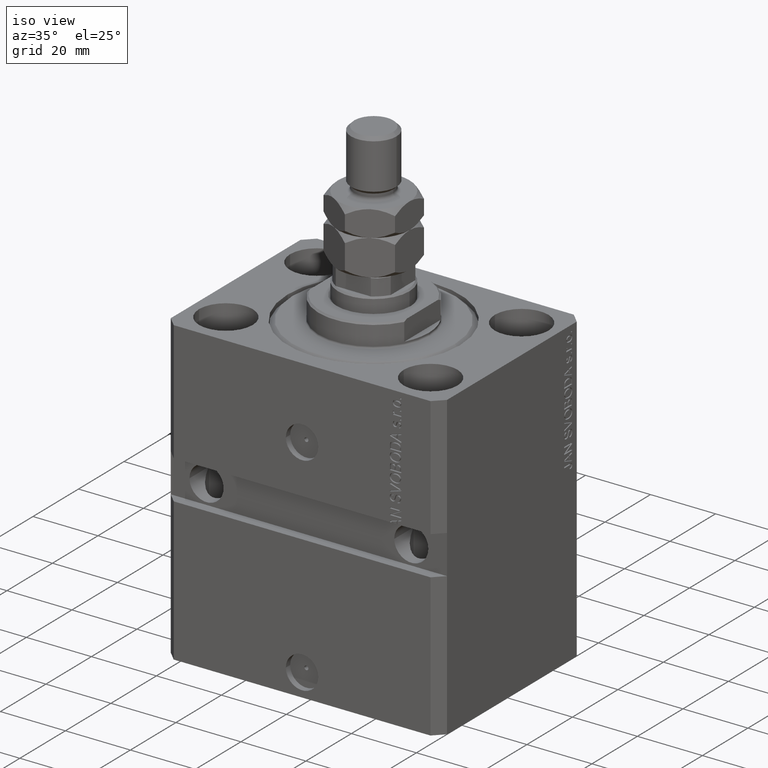
[diagram: clean part render]
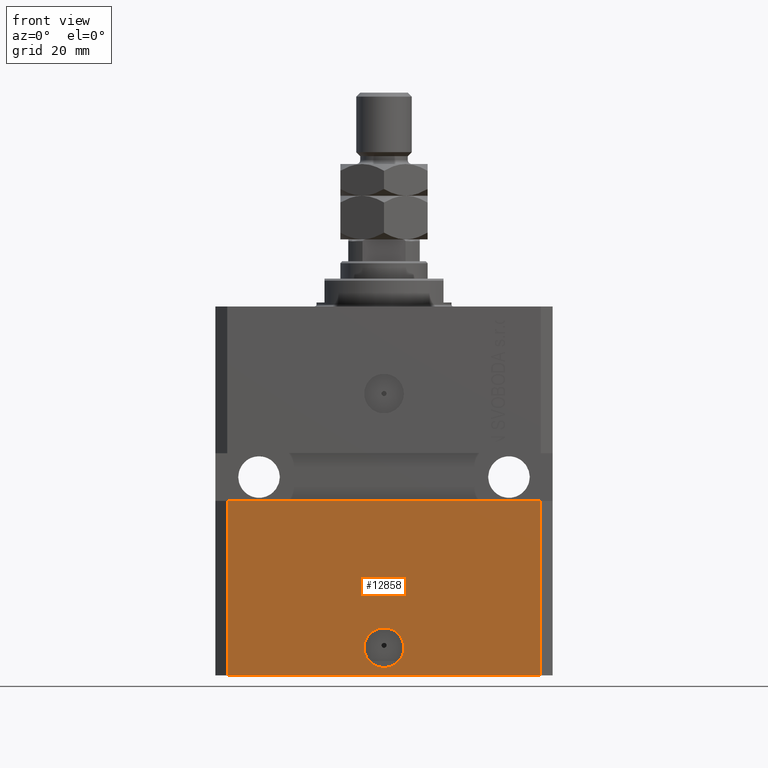
[diagram: tour spotlight — one face highlighted and labeled with its STEP entity id]
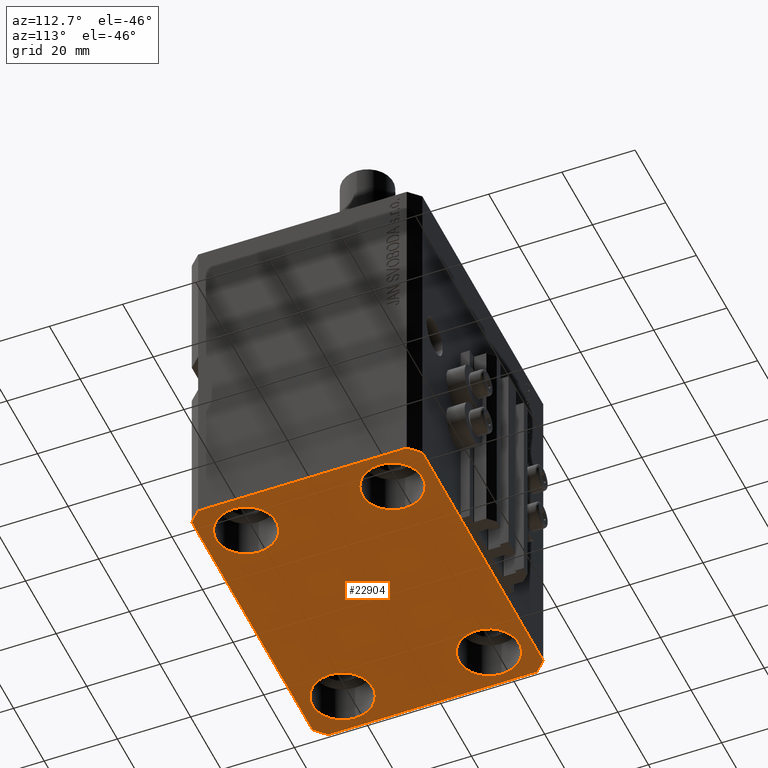
[diagram: tour spotlight — one face highlighted and labeled with its STEP entity id]
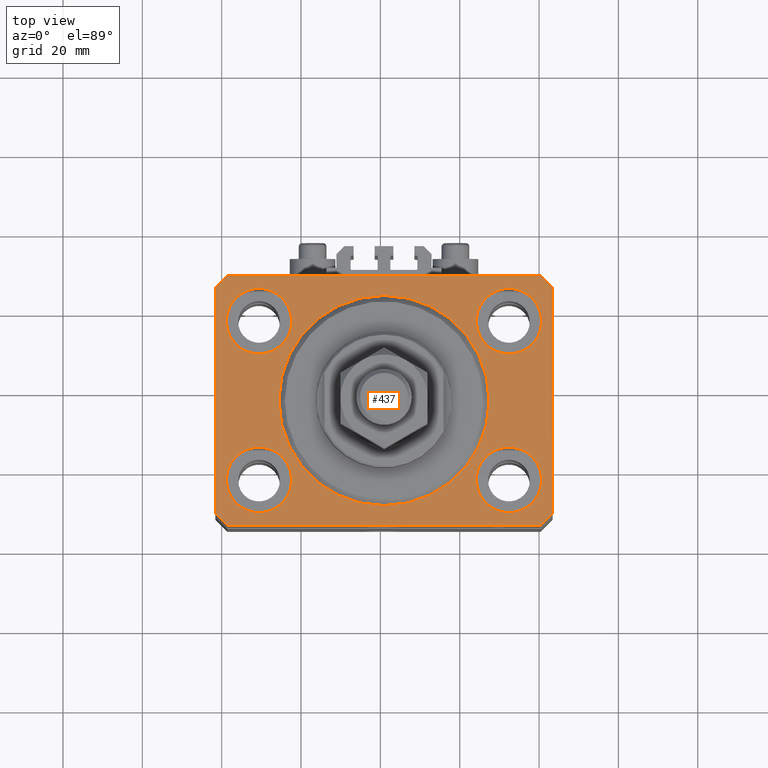
[diagram: tour spotlight — one face highlighted and labeled with its STEP entity id]
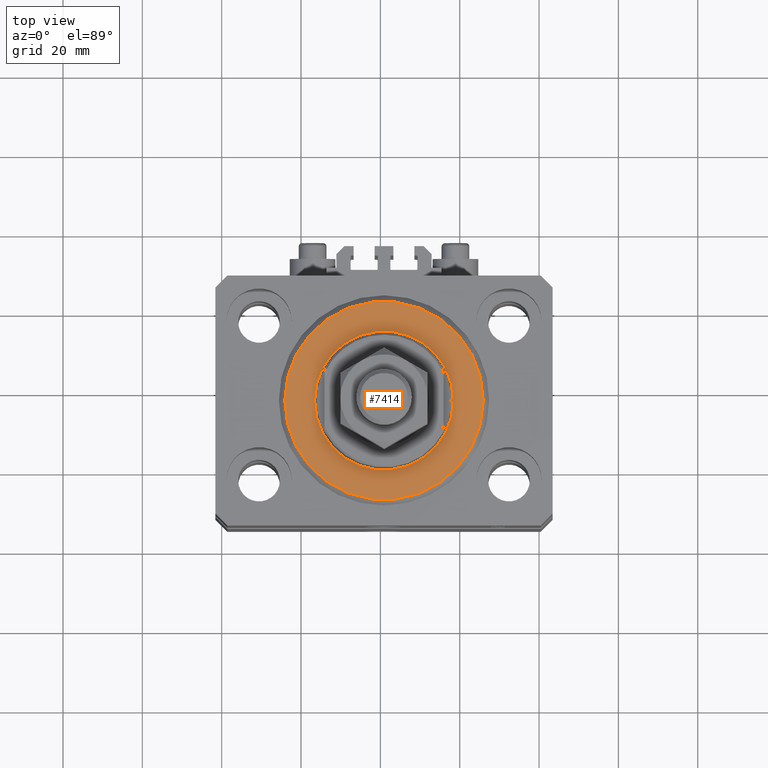
[diagram: tour spotlight — one face highlighted and labeled with its STEP entity id]
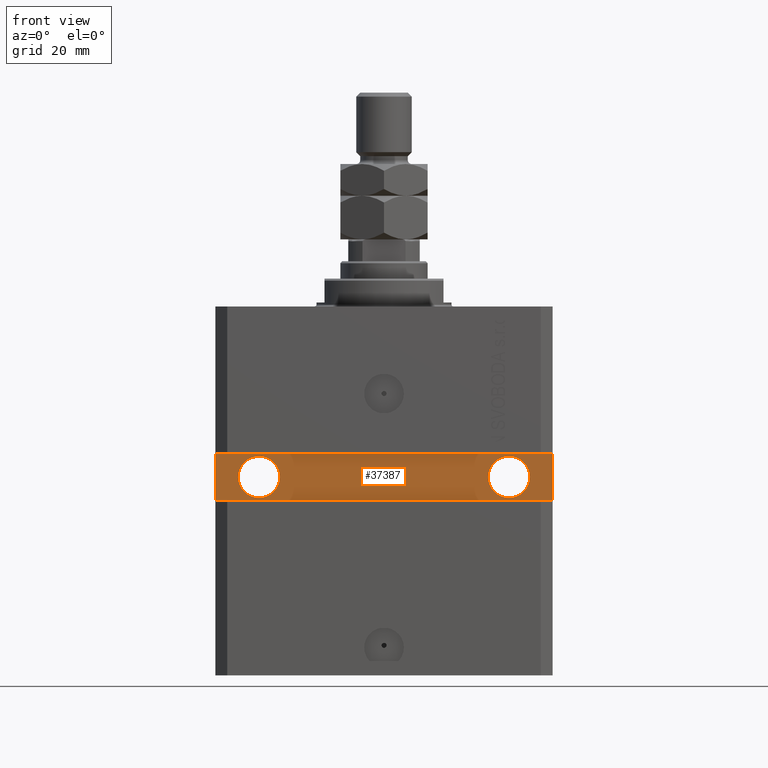
[diagram: tour spotlight — one face highlighted and labeled with its STEP entity id]
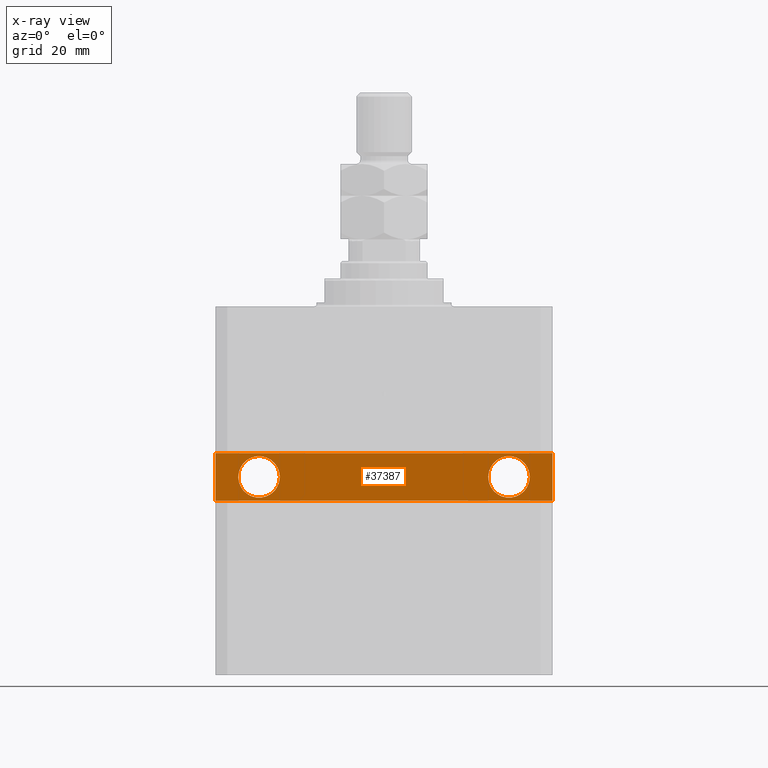
[diagram: x-ray of the same camera — body ghosted, this tour face saturated]
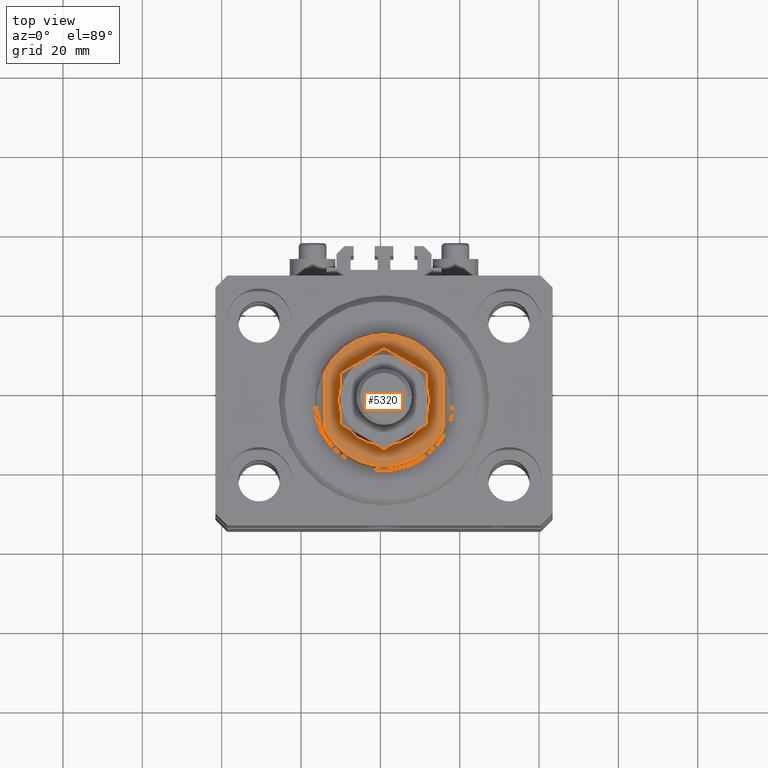
[diagram: tour spotlight — one face highlighted and labeled with its STEP entity id]
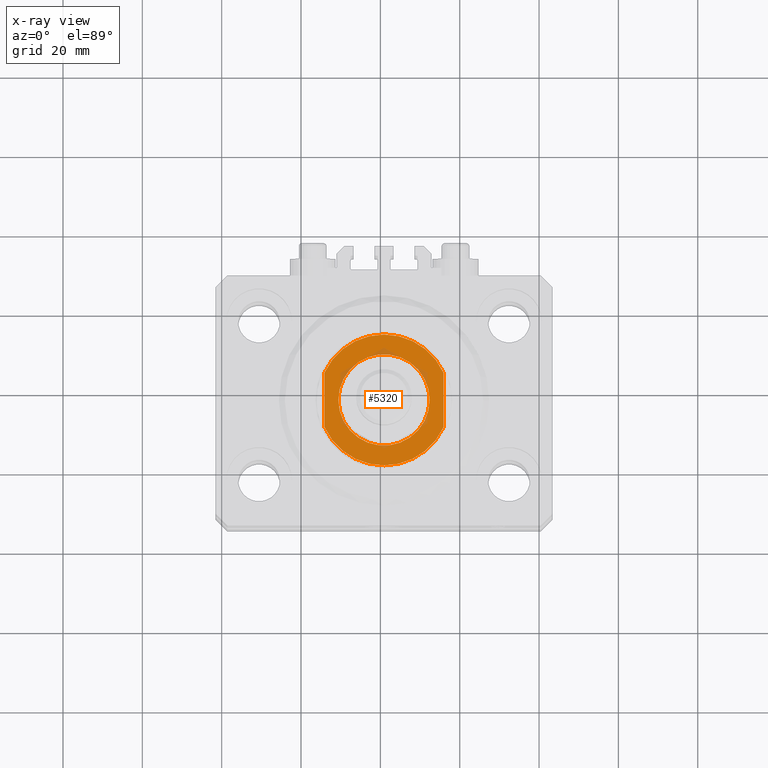
[diagram: x-ray of the same camera — body ghosted, this tour face saturated]
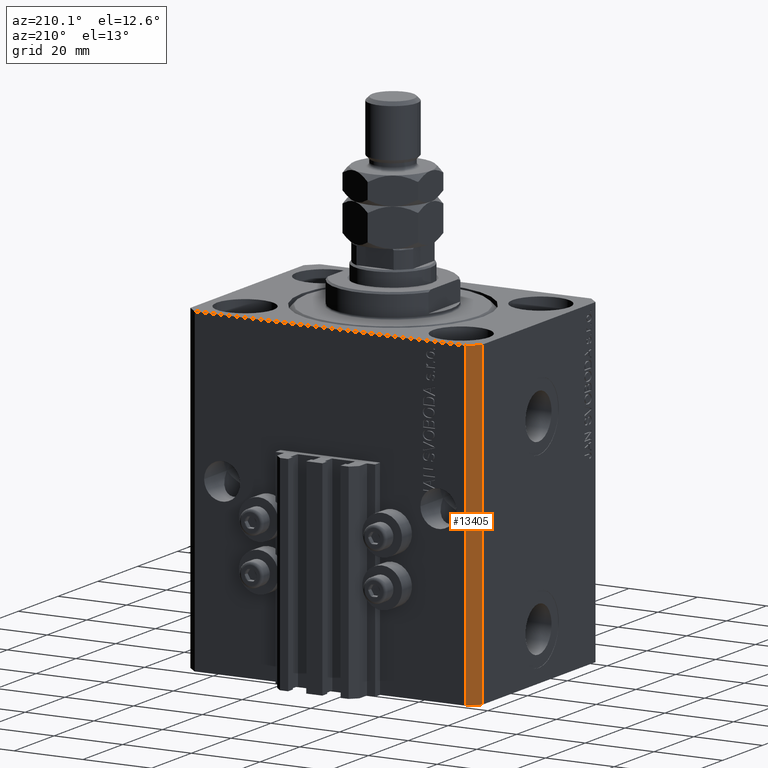
[diagram: tour spotlight — one face highlighted and labeled with its STEP entity id]
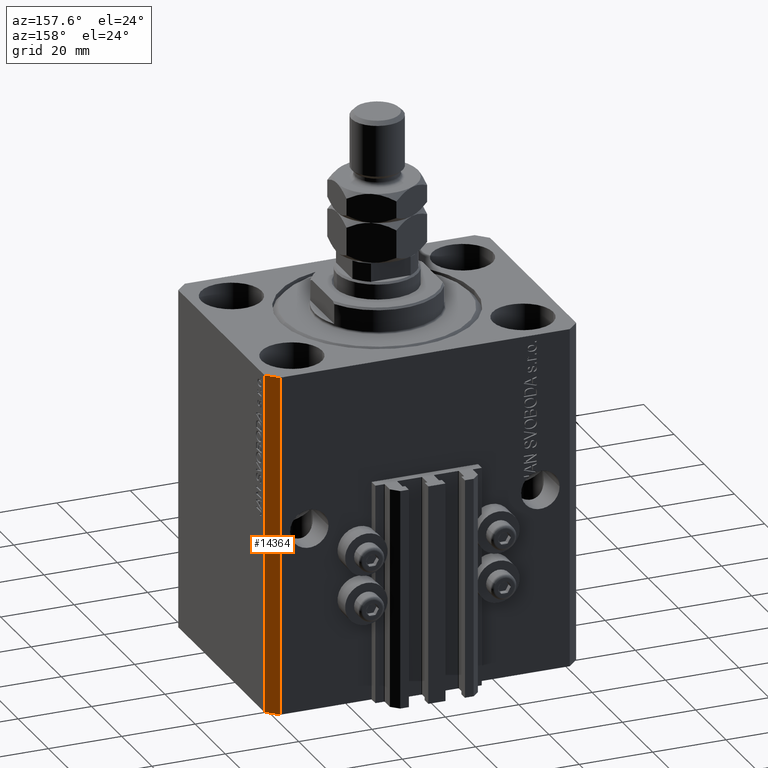
[diagram: tour spotlight — one face highlighted and labeled with its STEP entity id]
A machine part: a face-by-face anatomy tour. The part has 1136 B-rep faces; the first image is the clean iso view, then the 8 largest visible faces are spotlighted one at a time (largest first), each with its STEP entity span.

Face 1 — front view, entity #12858. In plain terms, the highlighted planar face has unit normal (0, -1, 0).
Definition (entity closure, byte-faithful):
#1700 = EDGE_CURVE ( 'NONE', #23500, #26855, #39882, .T. ) ;
#1937 = VECTOR ( 'NONE', #33084, 1000.000000000000000 ) ;
#2805 = CARTESIAN_POINT ( 'NONE',  ( 39.50000000000000711, -31.50000000000000000, -93.00000000000000000 ) ) ;
#3910 = CARTESIAN_POINT ( 'NONE',  ( 0.000000000000000000, -31.50000000000000000, -86.00000000000000000 ) ) ;
#4820 = CARTESIAN_POINT ( 'NONE',  ( -39.50000000000000711, -31.50000000000000000, -93.00000000000000000 ) ) ;
#5060 = LINE ( 'NONE', #10177, #32461 ) ;
#8676 = VERTEX_POINT ( 'NONE', #14331 ) ;
#10177 = CARTESIAN_POINT ( 'NONE',  ( -42.50000000000000000, -31.50000000000000711, -48.99999999999999289 ) ) ;
#10180 = VECTOR ( 'NONE', #32358, 1000.000000000000000 ) ;
#12005 = LINE ( 'NONE', #26915, #36953 ) ;
#12858 = ADVANCED_FACE ( 'NONE', ( #36768, #29058 ), #14657, .T. ) ;
#13060 = DIRECTION ( 'NONE',  ( 1.000000000000000000, 0.000000000000000000, 0.000000000000000000 ) ) ;
#13752 = CARTESIAN_POINT ( 'NONE',  ( 39.50000000000001421, -31.49999999999999289, -48.99999999999999289 ) ) ;
#14331 = CARTESIAN_POINT ( 'NONE',  ( 39.50000000000000711, -31.50000000000000000, -93.00000000000000000 ) ) ;
#14462 = LINE ( 'NONE', #2805, #1937 ) ;
#14657 = PLANE ( 'NONE',  #36928 ) ;
#14726 = AXIS2_PLACEMENT_3D ( 'NONE', #20497, #43381, #13060 ) ;
#15105 = DIRECTION ( 'NONE',  ( 1.176083712526788232E-16, -1.000000000000000000, 0.000000000000000000 ) ) ;
#18571 = CARTESIAN_POINT ( 'NONE',  ( 5.000000000000006217, -31.50000000000000000, -86.00000000000000000 ) ) ;
#19143 = EDGE_CURVE ( 'NONE', #8676, #45705, #14462, .T. ) ;
#20497 = CARTESIAN_POINT ( 'NONE',  ( 0.000000000000000000, -31.50000000000000000, -86.00000000000000000 ) ) ;
#23432 = DIRECTION ( 'NONE',  ( 0.000000000000000000, 0.000000000000000000, 1.000000000000000000 ) ) ;
#23500 = VERTEX_POINT ( 'NONE', #18571 ) ;
#24381 = ORIENTED_EDGE ( 'NONE', *, *, #34010, .F. ) ;
#24421 = LINE ( 'NONE', #4820, #10180 ) ;
#24609 = CARTESIAN_POINT ( 'NONE',  ( -5.000000000000006217, -31.50000000000000000, -86.00000000000000000 ) ) ;
#25200 = EDGE_CURVE ( 'NONE', #26855, #23500, #33743, .T. ) ;
#25814 = DIRECTION ( 'NONE',  ( 0.000000000000000000, -0.000000000000000000, -1.000000000000000000 ) ) ;
#26489 = EDGE_CURVE ( 'NONE', #46869, #37615, #12005, .T. ) ;
#26855 = VERTEX_POINT ( 'NONE', #24609 ) ;
#26915 = CARTESIAN_POINT ( 'NONE',  ( -39.50000000000000711, -31.50000000000000000, -93.00000000000000000 ) ) ;
#27894 = DIRECTION ( 'NONE',  ( 1.000000000000000000, 1.632680918566406300E-16, 0.000000000000000000 ) ) ;
#29058 = FACE_OUTER_BOUND ( 'NONE', #40084, .T. ) ;
#29196 = CARTESIAN_POINT ( 'NONE',  ( -39.50000000000000000, -31.50000000000000711, -48.99999999999999289 ) ) ;
#31523 = CARTESIAN_POINT ( 'NONE',  ( -39.50000000000000711, -31.50000000000000000, -93.00000000000000000 ) ) ;
#32358 = DIRECTION ( 'NONE',  ( 1.000000000000000000, 0.000000000000000000, 0.000000000000000000 ) ) ;
#32461 = VECTOR ( 'NONE', #27894, 1000.000000000000000 ) ;
#33029 = DIRECTION ( 'NONE',  ( 0.000000000000000000, -1.000000000000000000, 0.000000000000000000 ) ) ;
#33084 = DIRECTION ( 'NONE',  ( 0.000000000000000000, 0.000000000000000000, 1.000000000000000000 ) ) ;
#33743 = CIRCLE ( 'NONE', #14726, 5.000000000000006217 ) ;
#34010 = EDGE_CURVE ( 'NONE', #37615, #45705, #5060, .T. ) ;
#36221 = ORIENTED_EDGE ( 'NONE', *, *, #26489, .F. ) ;
#36768 = FACE_BOUND ( 'NONE', #47471, .T. ) ;
#36928 = AXIS2_PLACEMENT_3D ( 'NONE', #43752, #33029, #25814 ) ;
#36953 = VECTOR ( 'NONE', #23432, 1000.000000000000000 ) ;
#37615 = VERTEX_POINT ( 'NONE', #29196 ) ;
#37850 = ORIENTED_EDGE ( 'NONE', *, *, #25200, .F. ) ;
#39882 = CIRCLE ( 'NONE', #43829, 5.000000000000006217 ) ;
#40084 = EDGE_LOOP ( 'NONE', ( #24381, #36221, #40140, #46895 ) ) ;
#40140 = ORIENTED_EDGE ( 'NONE', *, *, #44694, .T. ) ;
#43381 = DIRECTION ( 'NONE',  ( 1.176083712526788232E-16, -1.000000000000000000, 0.000000000000000000 ) ) ;
#43577 = ORIENTED_EDGE ( 'NONE', *, *, #1700, .F. ) ;
#43752 = CARTESIAN_POINT ( 'NONE',  ( -39.50000000000000711, -31.50000000000000000, -93.00000000000000000 ) ) ;
#43829 = AXIS2_PLACEMENT_3D ( 'NONE', #3910, #15105, #45398 ) ;
#44694 = EDGE_CURVE ( 'NONE', #46869, #8676, #24421, .T. ) ;
#45398 = DIRECTION ( 'NONE',  ( 1.000000000000000000, 0.000000000000000000, 0.000000000000000000 ) ) ;
#45705 = VERTEX_POINT ( 'NONE', #13752 ) ;
#46869 = VERTEX_POINT ( 'NONE', #31523 ) ;
#46895 = ORIENTED_EDGE ( 'NONE', *, *, #19143, .T. ) ;
#47471 = EDGE_LOOP ( 'NONE', ( #43577, #37850 ) ) ;

Face 2 — auxiliary view, entity #22904. In plain terms, the highlighted planar face has unit normal (0, 0, 1).
Definition (entity closure, byte-faithful):
#72 = FACE_OUTER_BOUND ( 'NONE', #13027, .T. ) ;
#223 = EDGE_CURVE ( 'NONE', #17241, #14047, #27242, .T. ) ;
#242 = CARTESIAN_POINT ( 'NONE',  ( -31.50000000000000000, -20.00000000000000000, -93.00000000000000000 ) ) ;
#975 = CARTESIAN_POINT ( 'NONE',  ( 23.25000000000000355, 20.00000000000001066, -93.00000000000000000 ) ) ;
#978 = VECTOR ( 'NONE', #34771, 1000.000000000000000 ) ;
#1201 = VERTEX_POINT ( 'NONE', #11555 ) ;
#1564 = DIRECTION ( 'NONE',  ( -0.000000000000000000, -0.000000000000000000, 1.000000000000000000 ) ) ;
#1812 = CARTESIAN_POINT ( 'NONE',  ( -31.50000000000000000, 20.00000000000000000, -93.00000000000000000 ) ) ;
#2036 = EDGE_CURVE ( 'NONE', #26745, #45262, #10544, .T. ) ;
#2079 = DIRECTION ( 'NONE',  ( -0.000000000000000000, -0.000000000000000000, 1.000000000000000000 ) ) ;
#2785 = ORIENTED_EDGE ( 'NONE', *, *, #44694, .F. ) ;
#2941 = DIRECTION ( 'NONE',  ( -0.7071067811865356934, 0.7071067811865594521, 0.000000000000000000 ) ) ;
#3006 = CIRCLE ( 'NONE', #24437, 8.250000000000000000 ) ;
#3220 = EDGE_LOOP ( 'NONE', ( #14549, #31089 ) ) ;
#3462 = CIRCLE ( 'NONE', #20160, 8.249999999999992895 ) ;
#3969 = DIRECTION ( 'NONE',  ( -0.000000000000000000, -0.000000000000000000, 1.000000000000000000 ) ) ;
#4428 = AXIS2_PLACEMENT_3D ( 'NONE', #39587, #2079, #28145 ) ;
#4519 = DIRECTION ( 'NONE',  ( -1.000000000000000000, 0.000000000000000000, 0.000000000000000000 ) ) ;
#4644 = EDGE_CURVE ( 'NONE', #10604, #1201, #31284, .T. ) ;
#4790 = ORIENTED_EDGE ( 'NONE', *, *, #31215, .F. ) ;
#4820 = CARTESIAN_POINT ( 'NONE',  ( -39.50000000000000711, -31.50000000000000000, -93.00000000000000000 ) ) ;
#5285 = DIRECTION ( 'NONE',  ( -0.000000000000000000, -0.000000000000000000, 1.000000000000000000 ) ) ;
#6228 = LINE ( 'NONE', #25346, #6253 ) ;
#6253 = VECTOR ( 'NONE', #14179, 1000.000000000000000 ) ;
#6265 = CIRCLE ( 'NONE', #41164, 8.249999999999992895 ) ;
#6790 = FACE_BOUND ( 'NONE', #47739, .T. ) ;
#6797 = VERTEX_POINT ( 'NONE', #45265 ) ;
#7019 = CARTESIAN_POINT ( 'NONE',  ( 31.50000000000000000, -20.00000000000000000, -93.00000000000000000 ) ) ;
#7202 = DIRECTION ( 'NONE',  ( 1.000000000000000000, 0.000000000000000000, 0.000000000000000000 ) ) ;
#7265 = DIRECTION ( 'NONE',  ( 0.000000000000000000, 0.000000000000000000, 1.000000000000000000 ) ) ;
#7952 = EDGE_CURVE ( 'NONE', #30972, #44466, #3462, .T. ) ;
#7960 = CIRCLE ( 'NONE', #27788, 8.250000000000000000 ) ;
#8025 = CARTESIAN_POINT ( 'NONE',  ( 42.50000000000051870, 28.49999999999995381, -93.00000000000000000 ) ) ;
#8676 = VERTEX_POINT ( 'NONE', #14331 ) ;
#9077 = VECTOR ( 'NONE', #4519, 1000.000000000000000 ) ;
#9092 = CARTESIAN_POINT ( 'NONE',  ( -39.75000000000000000, 20.00000000000000000, -93.00000000000000000 ) ) ;
#9098 = ORIENTED_EDGE ( 'NONE', *, *, #24607, .T. ) ;
#9234 = CARTESIAN_POINT ( 'NONE',  ( -31.50000000000000000, 20.00000000000000000, -93.00000000000000000 ) ) ;
#10180 = VECTOR ( 'NONE', #32358, 1000.000000000000000 ) ;
#10544 = CIRCLE ( 'NONE', #40589, 8.250000000000000000 ) ;
#10604 = VERTEX_POINT ( 'NONE', #13122 ) ;
#10691 = CARTESIAN_POINT ( 'NONE',  ( 42.50000000000000711, -28.50000000000000355, -93.00000000000000000 ) ) ;
#10735 = DIRECTION ( 'NONE',  ( 1.000000000000000000, 0.000000000000000000, 0.000000000000000000 ) ) ;
#10869 = CARTESIAN_POINT ( 'NONE',  ( -39.75000000000000000, -20.00000000000000000, -93.00000000000000000 ) ) ;
#10989 = FACE_BOUND ( 'NONE', #3220, .T. ) ;
#11555 = CARTESIAN_POINT ( 'NONE',  ( -42.50000000000000000, -28.50000000000000000, -93.00000000000000000 ) ) ;
#11763 = DIRECTION ( 'NONE',  ( 0.7071067811865483499, 0.7071067811865466846, 0.000000000000000000 ) ) ;
#11782 = ORIENTED_EDGE ( 'NONE', *, *, #26623, .T. ) ;
#12259 = CARTESIAN_POINT ( 'NONE',  ( -31.50000000000000000, -20.00000000000000000, -93.00000000000000000 ) ) ;
#12976 = DIRECTION ( 'NONE',  ( 1.000000000000000000, 0.000000000000000000, 0.000000000000000000 ) ) ;
#13027 = EDGE_LOOP ( 'NONE', ( #48270, #4790, #43522, #30795, #2785, #35427, #25462, #37542 ) ) ;
#13122 = CARTESIAN_POINT ( 'NONE',  ( -42.50000000000000000, 28.50000000000000000, -93.00000000000000000 ) ) ;
#13360 = AXIS2_PLACEMENT_3D ( 'NONE', #12259, #27407, #17229 ) ;
#14047 = VERTEX_POINT ( 'NONE', #8025 ) ;
#14179 = DIRECTION ( 'NONE',  ( -0.7071067811865471286, -0.7071067811865479058, 0.000000000000000000 ) ) ;
#14331 = CARTESIAN_POINT ( 'NONE',  ( 39.50000000000000711, -31.50000000000000000, -93.00000000000000000 ) ) ;
#14549 = ORIENTED_EDGE ( 'NONE', *, *, #39936, .T. ) ;
#14935 = VERTEX_POINT ( 'NONE', #41646 ) ;
#15206 = CARTESIAN_POINT ( 'NONE',  ( -23.25000000000000000, 20.00000000000000000, -93.00000000000000000 ) ) ;
#15461 = CIRCLE ( 'NONE', #21796, 8.249999999999992895 ) ;
#16407 = CARTESIAN_POINT ( 'NONE',  ( -42.50000000000000000, 28.50000000000000000, -93.00000000000000000 ) ) ;
#17229 = DIRECTION ( 'NONE',  ( 1.000000000000000000, 0.000000000000000000, 0.000000000000000000 ) ) ;
#17241 = VERTEX_POINT ( 'NONE', #10691 ) ;
#17480 = ORIENTED_EDGE ( 'NONE', *, *, #44549, .T. ) ;
#18017 = EDGE_LOOP ( 'NONE', ( #20530, #11782 ) ) ;
#19526 = DIRECTION ( 'NONE',  ( 0.7071067811865471286, -0.7071067811865479058, 0.000000000000000000 ) ) ;
#20160 = AXIS2_PLACEMENT_3D ( 'NONE', #43541, #1564, #32577 ) ;
#20530 = ORIENTED_EDGE ( 'NONE', *, *, #7952, .T. ) ;
#20621 = CARTESIAN_POINT ( 'NONE',  ( 31.50000000000000000, -20.00000000000000000, -93.00000000000000000 ) ) ;
#20959 = VERTEX_POINT ( 'NONE', #21373 ) ;
#21104 = DIRECTION ( 'NONE',  ( -0.000000000000000000, -0.000000000000000000, 1.000000000000000000 ) ) ;
#21373 = CARTESIAN_POINT ( 'NONE',  ( -23.25000000000000000, -20.00000000000000000, -93.00000000000000000 ) ) ;
#21796 = AXIS2_PLACEMENT_3D ( 'NONE', #20621, #21104, #47712 ) ;
#22169 = DIRECTION ( 'NONE',  ( -0.000000000000000000, -0.000000000000000000, 1.000000000000000000 ) ) ;
#22290 = ORIENTED_EDGE ( 'NONE', *, *, #43092, .T. ) ;
#22904 = ADVANCED_FACE ( 'NONE', ( #6790, #26145, #30340, #10989, #72 ), #38078, .F. ) ;
#22948 = EDGE_CURVE ( 'NONE', #45279, #45795, #45776, .T. ) ;
#22994 = VECTOR ( 'NONE', #19526, 1000.000000000000000 ) ;
#23162 = VECTOR ( 'NONE', #38693, 1000.000000000000000 ) ;
#23522 = VERTEX_POINT ( 'NONE', #10869 ) ;
#23649 = DIRECTION ( 'NONE',  ( 1.000000000000000000, 0.000000000000000000, 0.000000000000000000 ) ) ;
#24421 = LINE ( 'NONE', #4820, #10180 ) ;
#24437 = AXIS2_PLACEMENT_3D ( 'NONE', #242, #3969, #7202 ) ;
#24607 = EDGE_CURVE ( 'NONE', #14935, #6797, #15461, .T. ) ;
#25340 = LINE ( 'NONE', #46382, #22994 ) ;
#25346 = CARTESIAN_POINT ( 'NONE',  ( -39.50000000000000711, 31.50000000000000000, -93.00000000000000000 ) ) ;
#25462 = ORIENTED_EDGE ( 'NONE', *, *, #4644, .F. ) ;
#25836 = CIRCLE ( 'NONE', #4428, 8.249999999999992895 ) ;
#26145 = FACE_BOUND ( 'NONE', #43414, .T. ) ;
#26623 = EDGE_CURVE ( 'NONE', #44466, #30972, #25836, .T. ) ;
#26745 = VERTEX_POINT ( 'NONE', #15206 ) ;
#27242 = LINE ( 'NONE', #42676, #23162 ) ;
#27407 = DIRECTION ( 'NONE',  ( -0.000000000000000000, -0.000000000000000000, 1.000000000000000000 ) ) ;
#27788 = AXIS2_PLACEMENT_3D ( 'NONE', #1812, #5285, #23649 ) ;
#28145 = DIRECTION ( 'NONE',  ( 1.000000000000000000, 0.000000000000000000, 0.000000000000000000 ) ) ;
#29656 = CARTESIAN_POINT ( 'NONE',  ( 39.74999999999999289, 20.00000000000001066, -93.00000000000000000 ) ) ;
#30340 = FACE_BOUND ( 'NONE', #18017, .T. ) ;
#30795 = ORIENTED_EDGE ( 'NONE', *, *, #41473, .F. ) ;
#30972 = VERTEX_POINT ( 'NONE', #975 ) ;
#31089 = ORIENTED_EDGE ( 'NONE', *, *, #2036, .T. ) ;
#31215 = EDGE_CURVE ( 'NONE', #14047, #45279, #40693, .T. ) ;
#31284 = LINE ( 'NONE', #16407, #978 ) ;
#31523 = CARTESIAN_POINT ( 'NONE',  ( -39.50000000000000711, -31.50000000000000000, -93.00000000000000000 ) ) ;
#31824 = CARTESIAN_POINT ( 'NONE',  ( -39.50000000000000711, 31.50000000000000000, -93.00000000000000000 ) ) ;
#32281 = VECTOR ( 'NONE', #11763, 1000.000000000000000 ) ;
#32358 = DIRECTION ( 'NONE',  ( 1.000000000000000000, 0.000000000000000000, 0.000000000000000000 ) ) ;
#32577 = DIRECTION ( 'NONE',  ( 1.000000000000000000, 0.000000000000000000, 0.000000000000000000 ) ) ;
#33950 = CARTESIAN_POINT ( 'NONE',  ( 42.50000000000051870, 28.49999999999995381, -93.00000000000000000 ) ) ;
#34375 = CARTESIAN_POINT ( 'NONE',  ( 39.50000000000000711, -31.50000000000000000, -93.00000000000000000 ) ) ;
#34771 = DIRECTION ( 'NONE',  ( 0.000000000000000000, -1.000000000000000000, 0.000000000000000000 ) ) ;
#35218 = EDGE_CURVE ( 'NONE', #1201, #46869, #25340, .T. ) ;
#35427 = ORIENTED_EDGE ( 'NONE', *, *, #35218, .F. ) ;
#35975 = EDGE_CURVE ( 'NONE', #6797, #14935, #6265, .T. ) ;
#36955 = LINE ( 'NONE', #34375, #32281 ) ;
#37542 = ORIENTED_EDGE ( 'NONE', *, *, #45928, .F. ) ;
#37831 = DIRECTION ( 'NONE',  ( 1.000000000000000000, 0.000000000000000000, -0.000000000000000000 ) ) ;
#38078 = PLANE ( 'NONE',  #40037 ) ;
#38693 = DIRECTION ( 'NONE',  ( 8.886653596232072440E-15, 1.000000000000000000, 0.000000000000000000 ) ) ;
#39057 = CARTESIAN_POINT ( 'NONE',  ( 39.50000000000056843, 31.50000000000000000, -93.00000000000000000 ) ) ;
#39587 = CARTESIAN_POINT ( 'NONE',  ( 31.50000000000000000, 20.00000000000001066, -93.00000000000000000 ) ) ;
#39936 = EDGE_CURVE ( 'NONE', #45262, #26745, #7960, .T. ) ;
#40037 = AXIS2_PLACEMENT_3D ( 'NONE', #44802, #7265, #37831 ) ;
#40052 = ORIENTED_EDGE ( 'NONE', *, *, #35975, .T. ) ;
#40589 = AXIS2_PLACEMENT_3D ( 'NONE', #9234, #42791, #12976 ) ;
#40693 = LINE ( 'NONE', #33950, #45884 ) ;
#41164 = AXIS2_PLACEMENT_3D ( 'NONE', #7019, #22169, #10735 ) ;
#41473 = EDGE_CURVE ( 'NONE', #8676, #17241, #36955, .T. ) ;
#41646 = CARTESIAN_POINT ( 'NONE',  ( 39.74999999999999289, -20.00000000000000000, -93.00000000000000000 ) ) ;
#41926 = CIRCLE ( 'NONE', #13360, 8.250000000000000000 ) ;
#42676 = CARTESIAN_POINT ( 'NONE',  ( 42.50000000000000711, -28.50000000000000355, -93.00000000000000000 ) ) ;
#42791 = DIRECTION ( 'NONE',  ( -0.000000000000000000, -0.000000000000000000, 1.000000000000000000 ) ) ;
#43092 = EDGE_CURVE ( 'NONE', #23522, #20959, #3006, .T. ) ;
#43414 = EDGE_LOOP ( 'NONE', ( #40052, #9098 ) ) ;
#43522 = ORIENTED_EDGE ( 'NONE', *, *, #223, .F. ) ;
#43541 = CARTESIAN_POINT ( 'NONE',  ( 31.50000000000000000, 20.00000000000001066, -93.00000000000000000 ) ) ;
#44466 = VERTEX_POINT ( 'NONE', #29656 ) ;
#44549 = EDGE_CURVE ( 'NONE', #20959, #23522, #41926, .T. ) ;
#44694 = EDGE_CURVE ( 'NONE', #46869, #8676, #24421, .T. ) ;
#44802 = CARTESIAN_POINT ( 'NONE',  ( 0.000000000000000000, 0.000000000000000000, -93.00000000000000000 ) ) ;
#45262 = VERTEX_POINT ( 'NONE', #9092 ) ;
#45265 = CARTESIAN_POINT ( 'NONE',  ( 23.25000000000000355, -20.00000000000000000, -93.00000000000000000 ) ) ;
#45279 = VERTEX_POINT ( 'NONE', #47612 ) ;
#45776 = LINE ( 'NONE', #39057, #9077 ) ;
#45795 = VERTEX_POINT ( 'NONE', #31824 ) ;
#45884 = VECTOR ( 'NONE', #2941, 1000.000000000000114 ) ;
#45928 = EDGE_CURVE ( 'NONE', #45795, #10604, #6228, .T. ) ;
#46382 = CARTESIAN_POINT ( 'NONE',  ( -42.50000000000000000, -28.50000000000000000, -93.00000000000000000 ) ) ;
#46869 = VERTEX_POINT ( 'NONE', #31523 ) ;
#47612 = CARTESIAN_POINT ( 'NONE',  ( 39.50000000000056843, 31.50000000000000000, -93.00000000000000000 ) ) ;
#47712 = DIRECTION ( 'NONE',  ( 1.000000000000000000, 0.000000000000000000, 0.000000000000000000 ) ) ;
#47739 = EDGE_LOOP ( 'NONE', ( #22290, #17480 ) ) ;
#48270 = ORIENTED_EDGE ( 'NONE', *, *, #22948, .F. ) ;

Face 3 — top view, entity #437. In plain terms, the highlighted planar face has unit normal (0, 0, 1).
Definition (entity closure, byte-faithful):
#437 = ADVANCED_FACE ( 'NONE', ( #40644, #10567, #37165, #2895, #47874, #13829 ), #25720, .T. ) ;
#662 = CARTESIAN_POINT ( 'NONE',  ( -31.50000000000000000, -20.00000000000000000, 0.000000000000000000 ) ) ;
#810 = DIRECTION ( 'NONE',  ( 0.000000000000000000, 0.000000000000000000, 1.000000000000000000 ) ) ;
#1129 = CARTESIAN_POINT ( 'NONE',  ( 39.50000000000000711, -31.50000000000000000, 0.000000000000000000 ) ) ;
#1179 = ORIENTED_EDGE ( 'NONE', *, *, #21724, .F. ) ;
#1253 = EDGE_LOOP ( 'NONE', ( #37906, #37489, #1619, #40328, #21938, #2011, #32620, #29382 ) ) ;
#1257 = CIRCLE ( 'NONE', #43329, 8.250000000000000000 ) ;
#1619 = ORIENTED_EDGE ( 'NONE', *, *, #40556, .T. ) ;
#2011 = ORIENTED_EDGE ( 'NONE', *, *, #9031, .T. ) ;
#2056 = DIRECTION ( 'NONE',  ( -1.000000000000000000, 0.000000000000000000, 0.000000000000000000 ) ) ;
#2679 = CARTESIAN_POINT ( 'NONE',  ( 0.000000000000000000, 0.000000000000000000, 0.000000000000000000 ) ) ;
#2895 = FACE_BOUND ( 'NONE', #17490, .T. ) ;
#3573 = VERTEX_POINT ( 'NONE', #1129 ) ;
#3732 = VECTOR ( 'NONE', #34311, 1000.000000000000000 ) ;
#3853 = CIRCLE ( 'NONE', #45216, 8.250000000000000000 ) ;
#4354 = CIRCLE ( 'NONE', #14690, 8.250000000000000000 ) ;
#5128 = DIRECTION ( 'NONE',  ( 1.000000000000000000, 0.000000000000000000, 0.000000000000000000 ) ) ;
#5761 = DIRECTION ( 'NONE',  ( 0.000000000000000000, 0.000000000000000000, 1.000000000000000000 ) ) ;
#5766 = CIRCLE ( 'NONE', #25650, 8.250000000000000000 ) ;
#5994 = EDGE_CURVE ( 'NONE', #24457, #12737, #5766, .T. ) ;
#6308 = EDGE_CURVE ( 'NONE', #43842, #27921, #46874, .T. ) ;
#6363 = VERTEX_POINT ( 'NONE', #43380 ) ;
#6649 = DIRECTION ( 'NONE',  ( 0.000000000000000000, 0.000000000000000000, 1.000000000000000000 ) ) ;
#7203 = EDGE_CURVE ( 'NONE', #28858, #33238, #11146, .T. ) ;
#7309 = VERTEX_POINT ( 'NONE', #48362 ) ;
#7417 = VECTOR ( 'NONE', #22814, 1000.000000000000000 ) ;
#7790 = AXIS2_PLACEMENT_3D ( 'NONE', #10741, #16819, #17723 ) ;
#7866 = ORIENTED_EDGE ( 'NONE', *, *, #41508, .F. ) ;
#7925 = DIRECTION ( 'NONE',  ( 1.000000000000000000, 0.000000000000000000, 0.000000000000000000 ) ) ;
#7982 = CARTESIAN_POINT ( 'NONE',  ( -39.50000000000000711, -31.50000000000000000, 0.000000000000000000 ) ) ;
#7987 = EDGE_LOOP ( 'NONE', ( #18312, #31922 ) ) ;
#8459 = CARTESIAN_POINT ( 'NONE',  ( 39.50000000000000711, -31.50000000000000000, 0.000000000000000000 ) ) ;
#8708 = DIRECTION ( 'NONE',  ( 0.7071067811865483499, 0.7071067811865466846, 0.000000000000000000 ) ) ;
#9031 = EDGE_CURVE ( 'NONE', #3573, #28858, #46229, .T. ) ;
#9519 = DIRECTION ( 'NONE',  ( 1.000000000000000000, 0.000000000000000000, 0.000000000000000000 ) ) ;
#10098 = CIRCLE ( 'NONE', #28330, 26.50000000000000355 ) ;
#10567 = FACE_BOUND ( 'NONE', #35962, .T. ) ;
#10741 = CARTESIAN_POINT ( 'NONE',  ( 31.50000000000000000, 20.00000000000001066, 0.000000000000000000 ) ) ;
#10813 = DIRECTION ( 'NONE',  ( 0.000000000000000000, 0.000000000000000000, 1.000000000000000000 ) ) ;
#11146 = LINE ( 'NONE', #22328, #7417 ) ;
#11515 = CARTESIAN_POINT ( 'NONE',  ( -23.25000000000000000, -20.00000000000000000, 0.000000000000000000 ) ) ;
#11954 = VERTEX_POINT ( 'NONE', #17106 ) ;
#12159 = EDGE_CURVE ( 'NONE', #18527, #7309, #10098, .T. ) ;
#12675 = EDGE_LOOP ( 'NONE', ( #1179, #14768 ) ) ;
#12687 = CARTESIAN_POINT ( 'NONE',  ( -39.75000000000000000, 20.00000000000000000, 0.000000000000000000 ) ) ;
#12737 = VERTEX_POINT ( 'NONE', #31307 ) ;
#12878 = AXIS2_PLACEMENT_3D ( 'NONE', #44628, #10813, #28963 ) ;
#13229 = DIRECTION ( 'NONE',  ( 1.000000000000000000, 0.000000000000000000, 0.000000000000000000 ) ) ;
#13829 = FACE_OUTER_BOUND ( 'NONE', #1253, .T. ) ;
#14352 = DIRECTION ( 'NONE',  ( 1.000000000000000000, 0.000000000000000000, 0.000000000000000000 ) ) ;
#14516 = CIRCLE ( 'NONE', #24820, 26.50000000000000355 ) ;
#14571 = CARTESIAN_POINT ( 'NONE',  ( 42.50000000000000711, -28.50000000000000355, 0.000000000000000000 ) ) ;
#14690 = AXIS2_PLACEMENT_3D ( 'NONE', #36470, #6649, #14352 ) ;
#14768 = ORIENTED_EDGE ( 'NONE', *, *, #35549, .F. ) ;
#14963 = LINE ( 'NONE', #7982, #3732 ) ;
#15075 = CARTESIAN_POINT ( 'NONE',  ( 39.74999999999999289, -20.00000000000000000, 0.000000000000000000 ) ) ;
#15271 = CARTESIAN_POINT ( 'NONE',  ( 31.50000000000000000, 20.00000000000001066, 0.000000000000000000 ) ) ;
#15766 = EDGE_CURVE ( 'NONE', #7309, #18527, #14516, .T. ) ;
#15897 = CARTESIAN_POINT ( 'NONE',  ( 23.25000000000000355, 20.00000000000001066, 0.000000000000000000 ) ) ;
#15966 = DIRECTION ( 'NONE',  ( 1.000000000000000000, 0.000000000000000000, 0.000000000000000000 ) ) ;
#16125 = VECTOR ( 'NONE', #16796, 1000.000000000000000 ) ;
#16144 = EDGE_CURVE ( 'NONE', #6363, #21478, #24674, .T. ) ;
#16569 = DIRECTION ( 'NONE',  ( 0.000000000000000000, 0.000000000000000000, 1.000000000000000000 ) ) ;
#16796 = DIRECTION ( 'NONE',  ( 0.7071067811865471286, -0.7071067811865479058, 0.000000000000000000 ) ) ;
#16819 = DIRECTION ( 'NONE',  ( 0.000000000000000000, 0.000000000000000000, 1.000000000000000000 ) ) ;
#17106 = CARTESIAN_POINT ( 'NONE',  ( 39.74999999999999289, 20.00000000000001066, 0.000000000000000000 ) ) ;
#17240 = DIRECTION ( 'NONE',  ( -0.7071067811865471286, -0.7071067811865479058, 0.000000000000000000 ) ) ;
#17344 = DIRECTION ( 'NONE',  ( 1.000000000000000000, 0.000000000000000000, 0.000000000000000000 ) ) ;
#17490 = EDGE_LOOP ( 'NONE', ( #33960, #47105 ) ) ;
#17723 = DIRECTION ( 'NONE',  ( 1.000000000000000000, 0.000000000000000000, 0.000000000000000000 ) ) ;
#18312 = ORIENTED_EDGE ( 'NONE', *, *, #15766, .F. ) ;
#18527 = VERTEX_POINT ( 'NONE', #22556 ) ;
#19177 = LINE ( 'NONE', #26875, #38860 ) ;
#19587 = CARTESIAN_POINT ( 'NONE',  ( -31.50000000000000000, -20.00000000000000000, 0.000000000000000000 ) ) ;
#19671 = EDGE_LOOP ( 'NONE', ( #22648, #7866 ) ) ;
#20176 = CARTESIAN_POINT ( 'NONE',  ( 39.50000000000056843, 31.50000000000000000, 0.000000000000000000 ) ) ;
#20909 = LINE ( 'NONE', #20176, #31704 ) ;
#21280 = CARTESIAN_POINT ( 'NONE',  ( -31.50000000000000000, 20.00000000000000000, 0.000000000000000000 ) ) ;
#21478 = VERTEX_POINT ( 'NONE', #42468 ) ;
#21559 = EDGE_CURVE ( 'NONE', #12737, #24457, #4354, .T. ) ;
#21724 = EDGE_CURVE ( 'NONE', #33941, #45458, #1257, .T. ) ;
#21938 = ORIENTED_EDGE ( 'NONE', *, *, #41838, .T. ) ;
#21952 = CARTESIAN_POINT ( 'NONE',  ( -42.50000000000000000, 28.50000000000000000, 0.000000000000000000 ) ) ;
#22328 = CARTESIAN_POINT ( 'NONE',  ( 42.50000000000000711, -28.50000000000000355, 0.000000000000000000 ) ) ;
#22556 = CARTESIAN_POINT ( 'NONE',  ( -26.50000000000000355, 3.245314017740485765E-15, 0.000000000000000000 ) ) ;
#22648 = ORIENTED_EDGE ( 'NONE', *, *, #31379, .F. ) ;
#22707 = CARTESIAN_POINT ( 'NONE',  ( -39.75000000000000000, -20.00000000000000000, 0.000000000000000000 ) ) ;
#22814 = DIRECTION ( 'NONE',  ( 8.886653596232072440E-15, 1.000000000000000000, 0.000000000000000000 ) ) ;
#23202 = CARTESIAN_POINT ( 'NONE',  ( -42.50000000000000000, -28.50000000000000000, 0.000000000000000000 ) ) ;
#23395 = DIRECTION ( 'NONE',  ( -0.7071067811865356934, 0.7071067811865594521, 0.000000000000000000 ) ) ;
#23560 = DIRECTION ( 'NONE',  ( 0.000000000000000000, 0.000000000000000000, 1.000000000000000000 ) ) ;
#23773 = AXIS2_PLACEMENT_3D ( 'NONE', #34827, #810, #15966 ) ;
#24457 = VERTEX_POINT ( 'NONE', #12687 ) ;
#24674 = LINE ( 'NONE', #47559, #31940 ) ;
#24820 = AXIS2_PLACEMENT_3D ( 'NONE', #2679, #47666, #17344 ) ;
#25141 = CIRCLE ( 'NONE', #36258, 8.249999999999992895 ) ;
#25509 = DIRECTION ( 'NONE',  ( 0.000000000000000000, 0.000000000000000000, 1.000000000000000000 ) ) ;
#25650 = AXIS2_PLACEMENT_3D ( 'NONE', #21280, #47654, #31735 ) ;
#25720 = PLANE ( 'NONE',  #12878 ) ;
#26408 = CARTESIAN_POINT ( 'NONE',  ( 23.25000000000000355, -20.00000000000000000, 0.000000000000000000 ) ) ;
#26875 = CARTESIAN_POINT ( 'NONE',  ( 42.50000000000051870, 28.49999999999995381, 0.000000000000000000 ) ) ;
#27921 = VERTEX_POINT ( 'NONE', #36927 ) ;
#28330 = AXIS2_PLACEMENT_3D ( 'NONE', #43805, #43080, #9519 ) ;
#28516 = AXIS2_PLACEMENT_3D ( 'NONE', #43781, #5761, #13229 ) ;
#28858 = VERTEX_POINT ( 'NONE', #14571 ) ;
#28963 = DIRECTION ( 'NONE',  ( 1.000000000000000000, 0.000000000000000000, -0.000000000000000000 ) ) ;
#29382 = ORIENTED_EDGE ( 'NONE', *, *, #38005, .T. ) ;
#29746 = VERTEX_POINT ( 'NONE', #39023 ) ;
#30090 = CIRCLE ( 'NONE', #28516, 8.249999999999992895 ) ;
#30388 = DIRECTION ( 'NONE',  ( 1.000000000000000000, 0.000000000000000000, 0.000000000000000000 ) ) ;
#31307 = CARTESIAN_POINT ( 'NONE',  ( -23.25000000000000000, 20.00000000000000000, 0.000000000000000000 ) ) ;
#31379 = EDGE_CURVE ( 'NONE', #11954, #46020, #37134, .T. ) ;
#31704 = VECTOR ( 'NONE', #2056, 1000.000000000000000 ) ;
#31735 = DIRECTION ( 'NONE',  ( 1.000000000000000000, 0.000000000000000000, 0.000000000000000000 ) ) ;
#31922 = ORIENTED_EDGE ( 'NONE', *, *, #12159, .F. ) ;
#31940 = VECTOR ( 'NONE', #17240, 1000.000000000000000 ) ;
#32167 = ORIENTED_EDGE ( 'NONE', *, *, #47463, .F. ) ;
#32243 = VECTOR ( 'NONE', #37122, 1000.000000000000000 ) ;
#32292 = CARTESIAN_POINT ( 'NONE',  ( 42.50000000000051870, 28.49999999999995381, 0.000000000000000000 ) ) ;
#32402 = CARTESIAN_POINT ( 'NONE',  ( -42.50000000000000000, -28.50000000000000000, 0.000000000000000000 ) ) ;
#32620 = ORIENTED_EDGE ( 'NONE', *, *, #7203, .T. ) ;
#32886 = LINE ( 'NONE', #21952, #32243 ) ;
#33074 = ORIENTED_EDGE ( 'NONE', *, *, #38024, .F. ) ;
#33238 = VERTEX_POINT ( 'NONE', #32292 ) ;
#33941 = VERTEX_POINT ( 'NONE', #11515 ) ;
#33960 = ORIENTED_EDGE ( 'NONE', *, *, #21559, .F. ) ;
#34311 = DIRECTION ( 'NONE',  ( 1.000000000000000000, 0.000000000000000000, 0.000000000000000000 ) ) ;
#34827 = CARTESIAN_POINT ( 'NONE',  ( 31.50000000000000000, -20.00000000000000000, 0.000000000000000000 ) ) ;
#35549 = EDGE_CURVE ( 'NONE', #45458, #33941, #3853, .T. ) ;
#35962 = EDGE_LOOP ( 'NONE', ( #33074, #32167 ) ) ;
#36258 = AXIS2_PLACEMENT_3D ( 'NONE', #15271, #25509, #30388 ) ;
#36470 = CARTESIAN_POINT ( 'NONE',  ( -31.50000000000000000, 20.00000000000000000, 0.000000000000000000 ) ) ;
#36927 = CARTESIAN_POINT ( 'NONE',  ( -39.50000000000000711, -31.50000000000000000, 0.000000000000000000 ) ) ;
#37122 = DIRECTION ( 'NONE',  ( 0.000000000000000000, -1.000000000000000000, 0.000000000000000000 ) ) ;
#37134 = CIRCLE ( 'NONE', #7790, 8.249999999999992895 ) ;
#37165 = FACE_BOUND ( 'NONE', #19671, .T. ) ;
#37489 = ORIENTED_EDGE ( 'NONE', *, *, #16144, .T. ) ;
#37906 = ORIENTED_EDGE ( 'NONE', *, *, #47467, .T. ) ;
#38005 = EDGE_CURVE ( 'NONE', #33238, #29746, #19177, .T. ) ;
#38024 = EDGE_CURVE ( 'NONE', #49097, #40621, #46828, .T. ) ;
#38860 = VECTOR ( 'NONE', #23395, 1000.000000000000114 ) ;
#39023 = CARTESIAN_POINT ( 'NONE',  ( 39.50000000000056843, 31.50000000000000000, 0.000000000000000000 ) ) ;
#40059 = VECTOR ( 'NONE', #8708, 1000.000000000000000 ) ;
#40328 = ORIENTED_EDGE ( 'NONE', *, *, #6308, .T. ) ;
#40556 = EDGE_CURVE ( 'NONE', #21478, #43842, #32886, .T. ) ;
#40621 = VERTEX_POINT ( 'NONE', #26408 ) ;
#40644 = FACE_BOUND ( 'NONE', #12675, .T. ) ;
#41508 = EDGE_CURVE ( 'NONE', #46020, #11954, #25141, .T. ) ;
#41838 = EDGE_CURVE ( 'NONE', #27921, #3573, #14963, .T. ) ;
#42468 = CARTESIAN_POINT ( 'NONE',  ( -42.50000000000000000, 28.50000000000000000, 0.000000000000000000 ) ) ;
#43080 = DIRECTION ( 'NONE',  ( 0.000000000000000000, 0.000000000000000000, 1.000000000000000000 ) ) ;
#43329 = AXIS2_PLACEMENT_3D ( 'NONE', #662, #16569, #5128 ) ;
#43380 = CARTESIAN_POINT ( 'NONE',  ( -39.50000000000000711, 31.50000000000000000, 0.000000000000000000 ) ) ;
#43781 = CARTESIAN_POINT ( 'NONE',  ( 31.50000000000000000, -20.00000000000000000, 0.000000000000000000 ) ) ;
#43805 = CARTESIAN_POINT ( 'NONE',  ( 0.000000000000000000, 0.000000000000000000, 0.000000000000000000 ) ) ;
#43842 = VERTEX_POINT ( 'NONE', #23202 ) ;
#44628 = CARTESIAN_POINT ( 'NONE',  ( 0.000000000000000000, 0.000000000000000000, 0.000000000000000000 ) ) ;
#45216 = AXIS2_PLACEMENT_3D ( 'NONE', #19587, #23560, #7925 ) ;
#45458 = VERTEX_POINT ( 'NONE', #22707 ) ;
#46020 = VERTEX_POINT ( 'NONE', #15897 ) ;
#46229 = LINE ( 'NONE', #8459, #40059 ) ;
#46828 = CIRCLE ( 'NONE', #23773, 8.249999999999992895 ) ;
#46874 = LINE ( 'NONE', #32402, #16125 ) ;
#47105 = ORIENTED_EDGE ( 'NONE', *, *, #5994, .F. ) ;
#47463 = EDGE_CURVE ( 'NONE', #40621, #49097, #30090, .T. ) ;
#47467 = EDGE_CURVE ( 'NONE', #29746, #6363, #20909, .T. ) ;
#47559 = CARTESIAN_POINT ( 'NONE',  ( -39.50000000000000711, 31.50000000000000000, 0.000000000000000000 ) ) ;
#47654 = DIRECTION ( 'NONE',  ( 0.000000000000000000, 0.000000000000000000, 1.000000000000000000 ) ) ;
#47666 = DIRECTION ( 'NONE',  ( 0.000000000000000000, 0.000000000000000000, 1.000000000000000000 ) ) ;
#47874 = FACE_BOUND ( 'NONE', #7987, .T. ) ;
#48362 = CARTESIAN_POINT ( 'NONE',  ( 26.50000000000000355, 0.000000000000000000, 0.000000000000000000 ) ) ;
#49097 = VERTEX_POINT ( 'NONE', #15075 ) ;

Face 4 — top view, entity #7414. In plain terms, the highlighted planar face has unit normal (0, 0, -1).
Definition (entity closure, byte-faithful):
#205 = CARTESIAN_POINT ( 'NONE',  ( 0.000000000000000000, 0.000000000000000000, 0.000000000000000000 ) ) ;
#1004 = VERTEX_POINT ( 'NONE', #16606 ) ;
#2296 = DIRECTION ( 'NONE',  ( 0.000000000000000000, 0.000000000000000000, 1.000000000000000000 ) ) ;
#2467 = EDGE_LOOP ( 'NONE', ( #28760, #37842 ) ) ;
#3203 = FACE_BOUND ( 'NONE', #21715, .T. ) ;
#3438 = DIRECTION ( 'NONE',  ( 0.000000000000000000, 0.000000000000000000, 1.000000000000000000 ) ) ;
#7414 = ADVANCED_FACE ( 'NONE', ( #3203, #48185 ), #22305, .F. ) ;
#11342 = ORIENTED_EDGE ( 'NONE', *, *, #47911, .T. ) ;
#13223 = CIRCLE ( 'NONE', #17193, 17.50000000000000000 ) ;
#14446 = CARTESIAN_POINT ( 'NONE',  ( 0.000000000000000000, 0.000000000000000000, 0.000000000000000000 ) ) ;
#15365 = DIRECTION ( 'NONE',  ( 0.000000000000000000, 0.000000000000000000, 1.000000000000000000 ) ) ;
#16191 = VERTEX_POINT ( 'NONE', #48290 ) ;
#16275 = CARTESIAN_POINT ( 'NONE',  ( 17.50000000000000000, 0.000000000000000000, 2.168404344971008868E-16 ) ) ;
#16606 = CARTESIAN_POINT ( 'NONE',  ( -24.99999999999995026, 3.153465507804431248E-15, 0.000000000000000000 ) ) ;
#17193 = AXIS2_PLACEMENT_3D ( 'NONE', #14446, #2296, #21155 ) ;
#17327 = CIRCLE ( 'NONE', #45090, 24.99999999999995026 ) ;
#18828 = DIRECTION ( 'NONE',  ( 1.000000000000000000, 0.000000000000000000, 0.000000000000000000 ) ) ;
#20910 = VERTEX_POINT ( 'NONE', #35554 ) ;
#21155 = DIRECTION ( 'NONE',  ( 1.000000000000000000, 0.000000000000000000, 0.000000000000000000 ) ) ;
#21674 = CARTESIAN_POINT ( 'NONE',  ( 0.000000000000000000, 0.000000000000000000, 0.000000000000000000 ) ) ;
#21715 = EDGE_LOOP ( 'NONE', ( #11342, #22518 ) ) ;
#22305 = PLANE ( 'NONE',  #42368 ) ;
#22518 = ORIENTED_EDGE ( 'NONE', *, *, #40020, .T. ) ;
#23355 = EDGE_CURVE ( 'NONE', #20910, #1004, #42420, .T. ) ;
#25299 = CARTESIAN_POINT ( 'NONE',  ( 0.000000000000000000, 0.000000000000000000, 0.000000000000000000 ) ) ;
#27810 = DIRECTION ( 'NONE',  ( -0.000000000000000000, -0.000000000000000000, -1.000000000000000000 ) ) ;
#28760 = ORIENTED_EDGE ( 'NONE', *, *, #23355, .T. ) ;
#29327 = CIRCLE ( 'NONE', #30911, 17.50000000000000000 ) ;
#30911 = AXIS2_PLACEMENT_3D ( 'NONE', #205, #15365, #18828 ) ;
#31273 = DIRECTION ( 'NONE',  ( 1.000000000000000000, 0.000000000000000000, 0.000000000000000000 ) ) ;
#32572 = VERTEX_POINT ( 'NONE', #16275 ) ;
#32755 = DIRECTION ( 'NONE',  ( 1.000000000000000000, 0.000000000000000000, -0.000000000000000000 ) ) ;
#35554 = CARTESIAN_POINT ( 'NONE',  ( 24.99999999999995026, 0.000000000000000000, 0.000000000000000000 ) ) ;
#37842 = ORIENTED_EDGE ( 'NONE', *, *, #44764, .T. ) ;
#40020 = EDGE_CURVE ( 'NONE', #16191, #32572, #13223, .T. ) ;
#40561 = DIRECTION ( 'NONE',  ( -0.000000000000000000, -0.000000000000000000, -1.000000000000000000 ) ) ;
#40810 = DIRECTION ( 'NONE',  ( 1.000000000000000000, 0.000000000000000000, 0.000000000000000000 ) ) ;
#42368 = AXIS2_PLACEMENT_3D ( 'NONE', #25299, #3438, #32755 ) ;
#42420 = CIRCLE ( 'NONE', #43219, 24.99999999999995026 ) ;
#43219 = AXIS2_PLACEMENT_3D ( 'NONE', #46719, #27810, #31273 ) ;
#44764 = EDGE_CURVE ( 'NONE', #1004, #20910, #17327, .T. ) ;
#45090 = AXIS2_PLACEMENT_3D ( 'NONE', #21674, #40561, #40810 ) ;
#46719 = CARTESIAN_POINT ( 'NONE',  ( 0.000000000000000000, 0.000000000000000000, 0.000000000000000000 ) ) ;
#47911 = EDGE_CURVE ( 'NONE', #32572, #16191, #29327, .T. ) ;
#48185 = FACE_OUTER_BOUND ( 'NONE', #2467, .T. ) ;
#48290 = CARTESIAN_POINT ( 'NONE',  ( -17.50000000000000000, 2.143131898507868643E-15, 2.168404344971008868E-16 ) ) ;

Face 5 — front view, entity #37387. An x-ray twin of the same camera follows (body ghosted, this face saturated) — the face is partly hidden behind the body. In plain terms, the highlighted planar face has unit normal (0, -1, 0).
Definition (entity closure, byte-faithful):
#200 = ORIENTED_EDGE ( 'NONE', *, *, #32840, .F. ) ;
#404 = CARTESIAN_POINT ( 'NONE',  ( -26.24999999999998934, -28.50000000000000355, -43.00000000000000000 ) ) ;
#1291 = VERTEX_POINT ( 'NONE', #20971 ) ;
#1761 = LINE ( 'NONE', #12170, #31075 ) ;
#1944 = DIRECTION ( 'NONE',  ( 0.000000000000000000, 0.000000000000000000, 1.000000000000000000 ) ) ;
#2180 = LINE ( 'NONE', #28007, #12319 ) ;
#2950 = FACE_BOUND ( 'NONE', #35073, .T. ) ;
#3470 = EDGE_CURVE ( 'NONE', #1291, #9565, #31886, .T. ) ;
#4474 = EDGE_CURVE ( 'NONE', #16169, #21145, #41748, .T. ) ;
#4900 = CARTESIAN_POINT ( 'NONE',  ( -42.50000000000000000, -28.50000000000000711, -48.99999999999999289 ) ) ;
#6132 = ORIENTED_EDGE ( 'NONE', *, *, #30810, .F. ) ;
#6819 = EDGE_LOOP ( 'NONE', ( #34519, #31076, #40214, #12287 ) ) ;
#6962 = DIRECTION ( 'NONE',  ( 1.000000000000000000, 0.000000000000000000, 0.000000000000000000 ) ) ;
#6973 = EDGE_LOOP ( 'NONE', ( #24686, #200 ) ) ;
#7204 = CARTESIAN_POINT ( 'NONE',  ( -31.49999999999998579, -28.50000000000000355, -43.00000000000000000 ) ) ;
#9491 = VERTEX_POINT ( 'NONE', #404 ) ;
#9565 = VERTEX_POINT ( 'NONE', #43858 ) ;
#9609 = DIRECTION ( 'NONE',  ( 1.000000000000000000, 0.000000000000000000, 0.000000000000000000 ) ) ;
#10622 = EDGE_CURVE ( 'NONE', #11796, #16169, #2180, .T. ) ;
#10901 = CIRCLE ( 'NONE', #19625, 5.249999999999997335 ) ;
#11796 = VERTEX_POINT ( 'NONE', #19089 ) ;
#12090 = DIRECTION ( 'NONE',  ( 1.000000000000000000, 1.632680918566406300E-16, 0.000000000000000000 ) ) ;
#12140 = ORIENTED_EDGE ( 'NONE', *, *, #43713, .F. ) ;
#12170 = CARTESIAN_POINT ( 'NONE',  ( -42.50000000000000000, -28.50000000000000711, -37.00000000000000711 ) ) ;
#12287 = ORIENTED_EDGE ( 'NONE', *, *, #13638, .T. ) ;
#12319 = VECTOR ( 'NONE', #1944, 1000.000000000000000 ) ;
#13638 = EDGE_CURVE ( 'NONE', #21145, #34341, #1761, .T. ) ;
#14370 = DIRECTION ( 'NONE',  ( 1.632680918566406300E-16, -1.000000000000000000, 0.000000000000000000 ) ) ;
#15778 = VECTOR ( 'NONE', #12090, 1000.000000000000000 ) ;
#16169 = VERTEX_POINT ( 'NONE', #45043 ) ;
#18023 = DIRECTION ( 'NONE',  ( 1.101411730780568590E-16, -1.000000000000000000, 0.000000000000000000 ) ) ;
#18095 = FACE_OUTER_BOUND ( 'NONE', #6819, .T. ) ;
#18168 = DIRECTION ( 'NONE',  ( -1.000000000000000000, -1.632680918566406300E-16, -2.449021377849609204E-16 ) ) ;
#19089 = CARTESIAN_POINT ( 'NONE',  ( 42.50000000000001421, -28.49999999999999289, -48.99999999999999289 ) ) ;
#19444 = DIRECTION ( 'NONE',  ( 1.037025423586453699E-16, -1.000000000000000000, 1.848892746611746419E-32 ) ) ;
#19625 = AXIS2_PLACEMENT_3D ( 'NONE', #7204, #34014, #6962 ) ;
#20195 = CARTESIAN_POINT ( 'NONE',  ( 31.50000000000001421, -28.49999999999999645, -43.00000000000000000 ) ) ;
#20466 = CIRCLE ( 'NONE', #44285, 5.249999999999997335 ) ;
#20593 = AXIS2_PLACEMENT_3D ( 'NONE', #48421, #14370, #29489 ) ;
#20971 = CARTESIAN_POINT ( 'NONE',  ( 36.75000000000001421, -28.49999999999999645, -43.00000000000000000 ) ) ;
#21145 = VERTEX_POINT ( 'NONE', #38984 ) ;
#22368 = CARTESIAN_POINT ( 'NONE',  ( 42.50000000000001421, -28.49999999999999289, -36.99999999999998579 ) ) ;
#23272 = LINE ( 'NONE', #4900, #15778 ) ;
#24686 = ORIENTED_EDGE ( 'NONE', *, *, #3470, .F. ) ;
#28007 = CARTESIAN_POINT ( 'NONE',  ( 42.50000000000001421, -28.49999999999999289, -48.99999999999999289 ) ) ;
#28484 = CARTESIAN_POINT ( 'NONE',  ( 31.50000000000001421, -28.49999999999999645, -43.00000000000000000 ) ) ;
#29489 = DIRECTION ( 'NONE',  ( 1.000000000000000000, 1.632680918566406300E-16, 0.000000000000000000 ) ) ;
#30466 = FACE_BOUND ( 'NONE', #6973, .T. ) ;
#30810 = EDGE_CURVE ( 'NONE', #9491, #39169, #10901, .T. ) ;
#31075 = VECTOR ( 'NONE', #42503, 1000.000000000000000 ) ;
#31076 = ORIENTED_EDGE ( 'NONE', *, *, #10622, .T. ) ;
#31753 = CARTESIAN_POINT ( 'NONE',  ( -42.50000000000000000, -28.50000000000000711, -48.99999999999999289 ) ) ;
#31886 = CIRCLE ( 'NONE', #43799, 5.249999999999997335 ) ;
#32282 = EDGE_CURVE ( 'NONE', #34341, #11796, #23272, .T. ) ;
#32840 = EDGE_CURVE ( 'NONE', #9565, #1291, #38006, .T. ) ;
#33161 = DIRECTION ( 'NONE',  ( 1.000000000000000000, 0.000000000000000000, 0.000000000000000000 ) ) ;
#33233 = PLANE ( 'NONE',  #20593 ) ;
#34014 = DIRECTION ( 'NONE',  ( 1.101411730780568590E-16, -1.000000000000000000, 0.000000000000000000 ) ) ;
#34341 = VERTEX_POINT ( 'NONE', #31753 ) ;
#34519 = ORIENTED_EDGE ( 'NONE', *, *, #32282, .T. ) ;
#34604 = DIRECTION ( 'NONE',  ( 1.000000000000000000, 0.000000000000000000, 0.000000000000000000 ) ) ;
#35073 = EDGE_LOOP ( 'NONE', ( #6132, #12140 ) ) ;
#37387 = ADVANCED_FACE ( 'NONE', ( #30466, #2950, #18095 ), #33233, .T. ) ;
#38006 = CIRCLE ( 'NONE', #41166, 5.249999999999997335 ) ;
#38984 = CARTESIAN_POINT ( 'NONE',  ( -42.50000000000000000, -28.50000000000000711, -37.00000000000000711 ) ) ;
#39169 = VERTEX_POINT ( 'NONE', #45410 ) ;
#40214 = ORIENTED_EDGE ( 'NONE', *, *, #4474, .T. ) ;
#41166 = AXIS2_PLACEMENT_3D ( 'NONE', #20195, #19444, #34604 ) ;
#41748 = LINE ( 'NONE', #22368, #45413 ) ;
#42503 = DIRECTION ( 'NONE',  ( 0.000000000000000000, 0.000000000000000000, -1.000000000000000000 ) ) ;
#43670 = DIRECTION ( 'NONE',  ( 1.037025423586453699E-16, -1.000000000000000000, 1.848892746611746419E-32 ) ) ;
#43713 = EDGE_CURVE ( 'NONE', #39169, #9491, #20466, .T. ) ;
#43799 = AXIS2_PLACEMENT_3D ( 'NONE', #28484, #43670, #9609 ) ;
#43858 = CARTESIAN_POINT ( 'NONE',  ( 26.25000000000001776, -28.49999999999999645, -43.00000000000000000 ) ) ;
#44285 = AXIS2_PLACEMENT_3D ( 'NONE', #48591, #18023, #33161 ) ;
#45043 = CARTESIAN_POINT ( 'NONE',  ( 42.50000000000001421, -28.49999999999999289, -36.99999999999998579 ) ) ;
#45410 = CARTESIAN_POINT ( 'NONE',  ( -36.74999999999998579, -28.50000000000000355, -43.00000000000000000 ) ) ;
#45413 = VECTOR ( 'NONE', #18168, 1000.000000000000000 ) ;
#48421 = CARTESIAN_POINT ( 'NONE',  ( 4.790119779726142858E-15, -28.50000000000000000, 0.000000000000000000 ) ) ;
#48591 = CARTESIAN_POINT ( 'NONE',  ( -31.49999999999998579, -28.50000000000000355, -43.00000000000000000 ) ) ;

Face 6 — top view, entity #5320. An x-ray twin of the same camera follows (body ghosted, this face saturated) — the face is partly hidden behind the body. In plain terms, the highlighted planar face has unit normal (0, 0, 1).
Definition (entity closure, byte-faithful):
#1587 = DIRECTION ( 'NONE',  ( -0.000000000000000000, -0.000000000000000000, 1.000000000000000000 ) ) ;
#2457 = CARTESIAN_POINT ( 'NONE',  ( 0.000000000000000000, 0.000000000000000000, -7.000000000000000000 ) ) ;
#2583 = ORIENTED_EDGE ( 'NONE', *, *, #14565, .T. ) ;
#3047 = DIRECTION ( 'NONE',  ( -1.000000000000000000, 0.000000000000000000, 0.000000000000000000 ) ) ;
#3088 = VECTOR ( 'NONE', #41678, 1000.000000000000000 ) ;
#3428 = LINE ( 'NONE', #33232, #3088 ) ;
#3627 = FACE_BOUND ( 'NONE', #13582, .T. ) ;
#4016 = DIRECTION ( 'NONE',  ( 0.000000000000000000, -1.000000000000000000, -0.000000000000000000 ) ) ;
#4807 = DIRECTION ( 'NONE',  ( -1.000000000000000000, 0.000000000000000000, 0.000000000000000000 ) ) ;
#5099 = PLANE ( 'NONE',  #47844 ) ;
#5320 = ADVANCED_FACE ( 'NONE', ( #3627, #18766 ), #5099, .T. ) ;
#8485 = ORIENTED_EDGE ( 'NONE', *, *, #46213, .T. ) ;
#8501 = ORIENTED_EDGE ( 'NONE', *, *, #32043, .F. ) ;
#11356 = EDGE_CURVE ( 'NONE', #36359, #34687, #32948, .T. ) ;
#11695 = CARTESIAN_POINT ( 'NONE',  ( 15.00000000000000000, -42.42640687119285303, -7.000000000000000000 ) ) ;
#12488 = EDGE_CURVE ( 'NONE', #14063, #16051, #31056, .T. ) ;
#13582 = EDGE_LOOP ( 'NONE', ( #32017, #2583 ) ) ;
#14063 = VERTEX_POINT ( 'NONE', #41823 ) ;
#14565 = EDGE_CURVE ( 'NONE', #34687, #36359, #47022, .T. ) ;
#14731 = ORIENTED_EDGE ( 'NONE', *, *, #43894, .T. ) ;
#16051 = VERTEX_POINT ( 'NONE', #34926 ) ;
#17286 = AXIS2_PLACEMENT_3D ( 'NONE', #34062, #22877, #3047 ) ;
#17599 = DIRECTION ( 'NONE',  ( -1.000000000000000000, 0.000000000000000000, 0.000000000000000000 ) ) ;
#18321 = CARTESIAN_POINT ( 'NONE',  ( -11.49999999999999645, 0.000000000000000000, -7.000000000000000000 ) ) ;
#18766 = FACE_OUTER_BOUND ( 'NONE', #22127, .T. ) ;
#22127 = EDGE_LOOP ( 'NONE', ( #8485, #41676, #14731, #8501 ) ) ;
#22234 = CARTESIAN_POINT ( 'NONE',  ( -15.00000000000000000, -6.873863542433783280, -7.000000000000000000 ) ) ;
#22877 = DIRECTION ( 'NONE',  ( 0.000000000000000000, 0.000000000000000000, -1.000000000000000000 ) ) ;
#22902 = CIRCLE ( 'NONE', #43544, 16.50000000000000711 ) ;
#24213 = DIRECTION ( 'NONE',  ( 0.000000000000000000, 0.000000000000000000, -1.000000000000000000 ) ) ;
#25805 = DIRECTION ( 'NONE',  ( -1.000000000000000000, 0.000000000000000000, 0.000000000000000000 ) ) ;
#27935 = CARTESIAN_POINT ( 'NONE',  ( 0.000000000000000000, 0.000000000000000000, -7.000000000000000000 ) ) ;
#28566 = DIRECTION ( 'NONE',  ( -0.000000000000000000, -0.000000000000000000, 1.000000000000000000 ) ) ;
#28980 = AXIS2_PLACEMENT_3D ( 'NONE', #35349, #1587, #4807 ) ;
#30735 = CIRCLE ( 'NONE', #17286, 16.50000000000000711 ) ;
#31056 = LINE ( 'NONE', #11695, #34672 ) ;
#31419 = VERTEX_POINT ( 'NONE', #40572 ) ;
#32017 = ORIENTED_EDGE ( 'NONE', *, *, #11356, .T. ) ;
#32043 = EDGE_CURVE ( 'NONE', #31419, #36653, #3428, .T. ) ;
#32948 = CIRCLE ( 'NONE', #28980, 11.49999999999999645 ) ;
#33232 = CARTESIAN_POINT ( 'NONE',  ( -15.00000000000000000, -42.42640687119285303, -7.000000000000000000 ) ) ;
#34062 = CARTESIAN_POINT ( 'NONE',  ( 0.000000000000000000, 0.000000000000000000, -7.000000000000000000 ) ) ;
#34672 = VECTOR ( 'NONE', #4016, 1000.000000000000000 ) ;
#34687 = VERTEX_POINT ( 'NONE', #40618 ) ;
#34926 = CARTESIAN_POINT ( 'NONE',  ( 14.99999999999999645, -6.873863542433781504, -7.000000000000000000 ) ) ;
#35106 = AXIS2_PLACEMENT_3D ( 'NONE', #36264, #28566, #25805 ) ;
#35349 = CARTESIAN_POINT ( 'NONE',  ( 0.000000000000000000, 0.000000000000000000, -7.000000000000000000 ) ) ;
#36128 = DIRECTION ( 'NONE',  ( -1.000000000000000000, 0.000000000000000000, -0.000000000000000000 ) ) ;
#36264 = CARTESIAN_POINT ( 'NONE',  ( 0.000000000000000000, 0.000000000000000000, -7.000000000000000000 ) ) ;
#36359 = VERTEX_POINT ( 'NONE', #18321 ) ;
#36653 = VERTEX_POINT ( 'NONE', #22234 ) ;
#40572 = CARTESIAN_POINT ( 'NONE',  ( -14.99999999999999645, 6.873863542433781504, -7.000000000000000000 ) ) ;
#40618 = CARTESIAN_POINT ( 'NONE',  ( 11.49999999999999645, 1.408343819019455781E-15, -7.000000000000000000 ) ) ;
#41676 = ORIENTED_EDGE ( 'NONE', *, *, #12488, .T. ) ;
#41678 = DIRECTION ( 'NONE',  ( -0.000000000000000000, -1.000000000000000000, -0.000000000000000000 ) ) ;
#41823 = CARTESIAN_POINT ( 'NONE',  ( 14.99999999999999645, 6.873863542433781504, -7.000000000000000000 ) ) ;
#43544 = AXIS2_PLACEMENT_3D ( 'NONE', #2457, #48169, #17599 ) ;
#43894 = EDGE_CURVE ( 'NONE', #16051, #36653, #30735, .T. ) ;
#46213 = EDGE_CURVE ( 'NONE', #31419, #14063, #22902, .T. ) ;
#47022 = CIRCLE ( 'NONE', #35106, 11.49999999999999645 ) ;
#47844 = AXIS2_PLACEMENT_3D ( 'NONE', #27935, #24213, #36128 ) ;
#48169 = DIRECTION ( 'NONE',  ( 0.000000000000000000, 0.000000000000000000, -1.000000000000000000 ) ) ;

Face 7 — auxiliary view, entity #13405. In plain terms, the highlighted planar face has unit normal (-0.7071, 0.7071, 0).
Definition (entity closure, byte-faithful):
#165 = EDGE_CURVE ( 'NONE', #10604, #21478, #33475, .T. ) ;
#2222 = ORIENTED_EDGE ( 'NONE', *, *, #16144, .F. ) ;
#3253 = ORIENTED_EDGE ( 'NONE', *, *, #26553, .F. ) ;
#6228 = LINE ( 'NONE', #25346, #6253 ) ;
#6253 = VECTOR ( 'NONE', #14179, 1000.000000000000000 ) ;
#6363 = VERTEX_POINT ( 'NONE', #43380 ) ;
#7283 = VECTOR ( 'NONE', #36734, 1000.000000000000000 ) ;
#9992 = LINE ( 'NONE', #47545, #30576 ) ;
#10604 = VERTEX_POINT ( 'NONE', #13122 ) ;
#13122 = CARTESIAN_POINT ( 'NONE',  ( -42.50000000000000000, 28.50000000000000000, -93.00000000000000000 ) ) ;
#13405 = ADVANCED_FACE ( 'NONE', ( #31843 ), #32093, .T. ) ;
#14179 = DIRECTION ( 'NONE',  ( -0.7071067811865471286, -0.7071067811865479058, 0.000000000000000000 ) ) ;
#15223 = AXIS2_PLACEMENT_3D ( 'NONE', #39803, #43306, #42809 ) ;
#16144 = EDGE_CURVE ( 'NONE', #6363, #21478, #24674, .T. ) ;
#17240 = DIRECTION ( 'NONE',  ( -0.7071067811865471286, -0.7071067811865479058, 0.000000000000000000 ) ) ;
#18099 = ORIENTED_EDGE ( 'NONE', *, *, #165, .T. ) ;
#18224 = EDGE_LOOP ( 'NONE', ( #2222, #3253, #42907, #18099 ) ) ;
#21478 = VERTEX_POINT ( 'NONE', #42468 ) ;
#24674 = LINE ( 'NONE', #47559, #31940 ) ;
#25346 = CARTESIAN_POINT ( 'NONE',  ( -39.50000000000000711, 31.50000000000000000, -93.00000000000000000 ) ) ;
#26553 = EDGE_CURVE ( 'NONE', #45795, #6363, #9992, .T. ) ;
#30576 = VECTOR ( 'NONE', #31616, 1000.000000000000000 ) ;
#31616 = DIRECTION ( 'NONE',  ( 0.000000000000000000, 0.000000000000000000, 1.000000000000000000 ) ) ;
#31824 = CARTESIAN_POINT ( 'NONE',  ( -39.50000000000000711, 31.50000000000000000, -93.00000000000000000 ) ) ;
#31843 = FACE_OUTER_BOUND ( 'NONE', #18224, .T. ) ;
#31940 = VECTOR ( 'NONE', #17240, 1000.000000000000000 ) ;
#32093 = PLANE ( 'NONE',  #15223 ) ;
#33475 = LINE ( 'NONE', #44201, #7283 ) ;
#36734 = DIRECTION ( 'NONE',  ( 0.000000000000000000, 0.000000000000000000, 1.000000000000000000 ) ) ;
#39803 = CARTESIAN_POINT ( 'NONE',  ( -39.50000000000000711, 31.50000000000000000, -93.00000000000000000 ) ) ;
#42468 = CARTESIAN_POINT ( 'NONE',  ( -42.50000000000000000, 28.50000000000000000, 0.000000000000000000 ) ) ;
#42809 = DIRECTION ( 'NONE',  ( -0.7071067811865471286, -0.7071067811865479058, 0.000000000000000000 ) ) ;
#42907 = ORIENTED_EDGE ( 'NONE', *, *, #45928, .T. ) ;
#43306 = DIRECTION ( 'NONE',  ( -0.7071067811865479058, 0.7071067811865471286, 0.000000000000000000 ) ) ;
#43380 = CARTESIAN_POINT ( 'NONE',  ( -39.50000000000000711, 31.50000000000000000, 0.000000000000000000 ) ) ;
#44201 = CARTESIAN_POINT ( 'NONE',  ( -42.50000000000000000, 28.50000000000000000, -93.00000000000000000 ) ) ;
#45795 = VERTEX_POINT ( 'NONE', #31824 ) ;
#45928 = EDGE_CURVE ( 'NONE', #45795, #10604, #6228, .T. ) ;
#47545 = CARTESIAN_POINT ( 'NONE',  ( -39.50000000000000711, 31.50000000000000000, -93.00000000000000000 ) ) ;
#47559 = CARTESIAN_POINT ( 'NONE',  ( -39.50000000000000711, 31.50000000000000000, 0.000000000000000000 ) ) ;

Face 8 — auxiliary view, entity #14364. In plain terms, the highlighted planar face has unit normal (0.7071, 0.7071, 0).
Definition (entity closure, byte-faithful):
#668 = ORIENTED_EDGE ( 'NONE', *, *, #31215, .T. ) ;
#2941 = DIRECTION ( 'NONE',  ( -0.7071067811865356934, 0.7071067811865594521, 0.000000000000000000 ) ) ;
#4239 = FACE_OUTER_BOUND ( 'NONE', #41631, .T. ) ;
#5449 = VECTOR ( 'NONE', #35851, 1000.000000000000000 ) ;
#7224 = ORIENTED_EDGE ( 'NONE', *, *, #48079, .F. ) ;
#8025 = CARTESIAN_POINT ( 'NONE',  ( 42.50000000000051870, 28.49999999999995381, -93.00000000000000000 ) ) ;
#9521 = VECTOR ( 'NONE', #39695, 1000.000000000000000 ) ;
#11199 = CARTESIAN_POINT ( 'NONE',  ( 42.50000000000051870, 28.49999999999995381, -93.00000000000000000 ) ) ;
#12890 = AXIS2_PLACEMENT_3D ( 'NONE', #11199, #46230, #42256 ) ;
#14047 = VERTEX_POINT ( 'NONE', #8025 ) ;
#14364 = ADVANCED_FACE ( 'NONE', ( #4239 ), #34785, .T. ) ;
#16501 = LINE ( 'NONE', #20450, #5449 ) ;
#18022 = ORIENTED_EDGE ( 'NONE', *, *, #44656, .T. ) ;
#19177 = LINE ( 'NONE', #26875, #38860 ) ;
#20450 = CARTESIAN_POINT ( 'NONE',  ( 39.50000000000056843, 31.50000000000000000, -93.00000000000000000 ) ) ;
#23395 = DIRECTION ( 'NONE',  ( -0.7071067811865356934, 0.7071067811865594521, 0.000000000000000000 ) ) ;
#26875 = CARTESIAN_POINT ( 'NONE',  ( 42.50000000000051870, 28.49999999999995381, 0.000000000000000000 ) ) ;
#28725 = LINE ( 'NONE', #29209, #9521 ) ;
#29209 = CARTESIAN_POINT ( 'NONE',  ( 42.50000000000051870, 28.49999999999995381, -93.00000000000000000 ) ) ;
#29746 = VERTEX_POINT ( 'NONE', #39023 ) ;
#31215 = EDGE_CURVE ( 'NONE', #14047, #45279, #40693, .T. ) ;
#32292 = CARTESIAN_POINT ( 'NONE',  ( 42.50000000000051870, 28.49999999999995381, 0.000000000000000000 ) ) ;
#33238 = VERTEX_POINT ( 'NONE', #32292 ) ;
#33950 = CARTESIAN_POINT ( 'NONE',  ( 42.50000000000051870, 28.49999999999995381, -93.00000000000000000 ) ) ;
#34785 = PLANE ( 'NONE',  #12890 ) ;
#35851 = DIRECTION ( 'NONE',  ( 0.000000000000000000, 0.000000000000000000, 1.000000000000000000 ) ) ;
#38005 = EDGE_CURVE ( 'NONE', #33238, #29746, #19177, .T. ) ;
#38860 = VECTOR ( 'NONE', #23395, 1000.000000000000114 ) ;
#39023 = CARTESIAN_POINT ( 'NONE',  ( 39.50000000000056843, 31.50000000000000000, 0.000000000000000000 ) ) ;
#39695 = DIRECTION ( 'NONE',  ( 0.000000000000000000, 0.000000000000000000, 1.000000000000000000 ) ) ;
#40693 = LINE ( 'NONE', #33950, #45884 ) ;
#41412 = ORIENTED_EDGE ( 'NONE', *, *, #38005, .F. ) ;
#41631 = EDGE_LOOP ( 'NONE', ( #41412, #7224, #668, #18022 ) ) ;
#42256 = DIRECTION ( 'NONE',  ( -0.7071067811865355823, 0.7071067811865594521, 0.000000000000000000 ) ) ;
#44656 = EDGE_CURVE ( 'NONE', #45279, #29746, #16501, .T. ) ;
#45279 = VERTEX_POINT ( 'NONE', #47612 ) ;
#45884 = VECTOR ( 'NONE', #2941, 1000.000000000000114 ) ;
#46230 = DIRECTION ( 'NONE',  ( 0.7071067811865594521, 0.7071067811865355823, -0.000000000000000000 ) ) ;
#47612 = CARTESIAN_POINT ( 'NONE',  ( 39.50000000000056843, 31.50000000000000000, -93.00000000000000000 ) ) ;
#48079 = EDGE_CURVE ( 'NONE', #14047, #33238, #28725, .T. ) ;